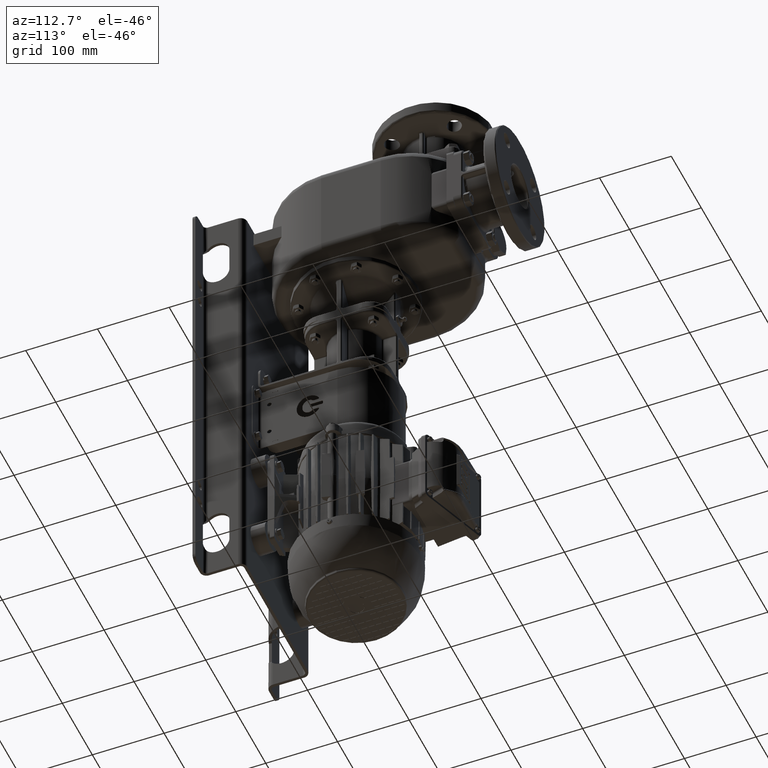
[diagram: clean part render]
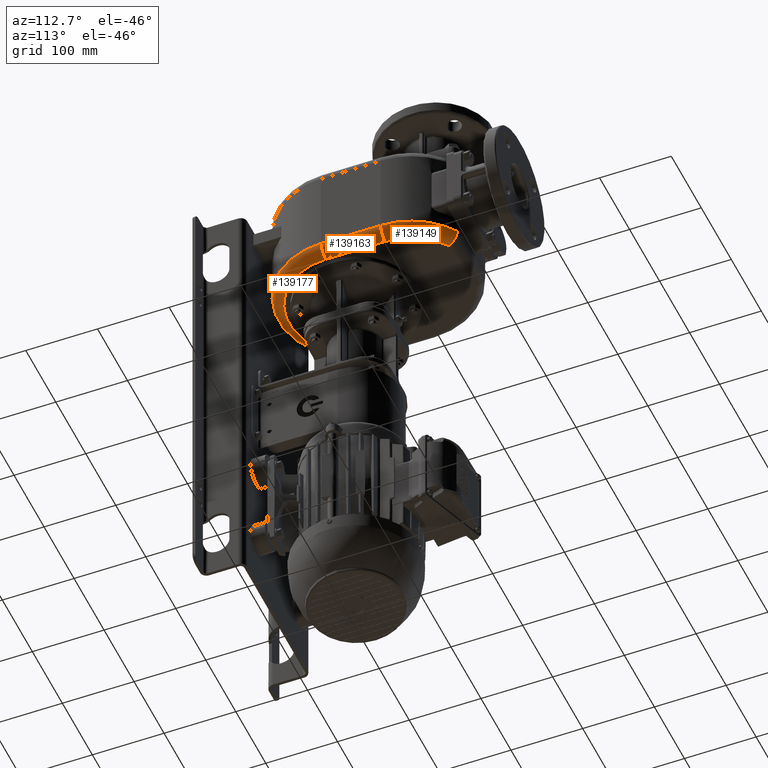
[diagram: same view with one multi-face feature highlighted, each face labeled with its STEP entity id]
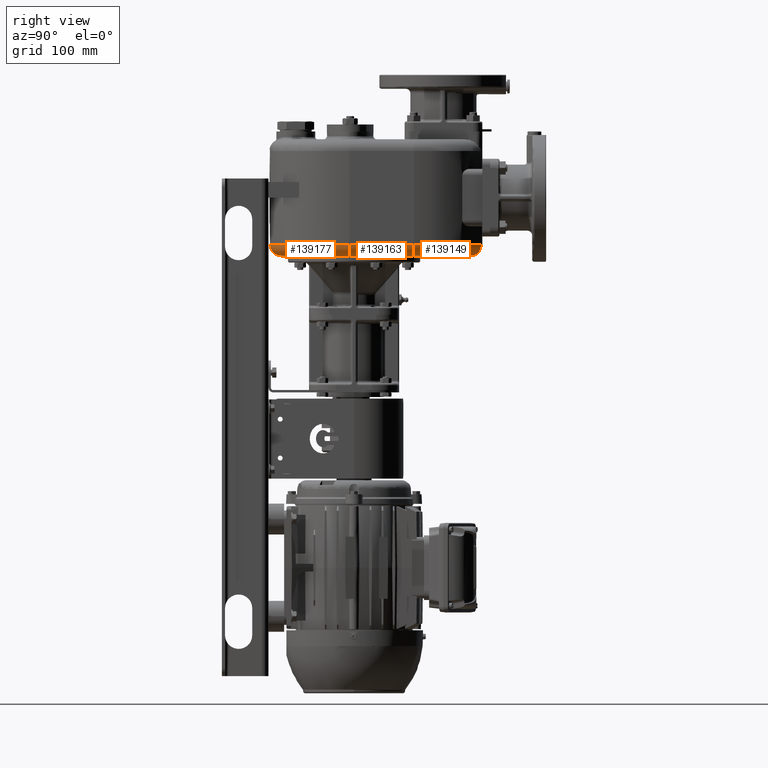
[diagram: same view with one multi-face feature highlighted, each face labeled with its STEP entity id]
A machine part, auxiliary view. The highlighted faces form ONE feature: a constant-radius fillet chain: 3 tangent blend faces with common blend radius 15 mm. The faces share edges in the B-rep.
A second angle (right view) of the same feature is appended — it is thin or edge-on in the first view.
Their STEP definitions:
[1] entity #139163 (Cylinder):
#41271=DIRECTION('',(0.E0,-1.E0,0.E0));
#41272=VECTOR('',#41271,8.285014036194E1);
#41273=CARTESIAN_POINT('',(8.8E1,1.868501403619E2,-8.5E1));
#41274=LINE('',#41273,#41272);
#53323=CARTESIAN_POINT('',(8.8E1,1.868501403619E2,-7.E1));
#53324=DIRECTION('',(0.E0,-1.E0,0.E0));
#53325=DIRECTION('',(0.E0,0.E0,-1.E0));
#53326=AXIS2_PLACEMENT_3D('',#53323,#53324,#53325);
#53328=CARTESIAN_POINT('',(8.8E1,1.04E2,-7.E1));
#53329=DIRECTION('',(0.E0,-1.E0,0.E0));
#53330=DIRECTION('',(0.E0,0.E0,-1.E0));
#53331=AXIS2_PLACEMENT_3D('',#53328,#53329,#53330);
#53543=DIRECTION('',(0.E0,-1.E0,0.E0));
#53544=VECTOR('',#53543,8.285014036194E1);
#53545=CARTESIAN_POINT('',(1.03E2,1.868501403620E2,-7.E1));
#53546=LINE('',#53545,#53544);
#78185=CARTESIAN_POINT('',(8.8E1,1.868501403619E2,-8.5E1));
#78186=VERTEX_POINT('',#78185);
#78188=CARTESIAN_POINT('',(1.03E2,1.868501403619E2,-7.E1));
#78190=VERTEX_POINT('',#78188);
#78191=CARTESIAN_POINT('',(8.8E1,1.04E2,-8.5E1));
#78192=VERTEX_POINT('',#78191);
#78193=CARTESIAN_POINT('',(1.03E2,1.04E2,-7.E1));
#78194=VERTEX_POINT('',#78193);
#139150=CARTESIAN_POINT('',(8.8E1,1.874318907324E2,-7.E1));
#139151=DIRECTION('',(0.E0,-1.E0,0.E0));
#139152=DIRECTION('',(0.E0,0.E0,-1.E0));
#139153=AXIS2_PLACEMENT_3D('',#139150,#139151,#139152);
#139154=CYLINDRICAL_SURFACE('',#139153,1.5E1);
#139155=ORIENTED_EDGE('',*,*,#129445,.T.);
#139157=ORIENTED_EDGE('',*,*,#139156,.T.);
#139159=ORIENTED_EDGE('',*,*,#139158,.F.);
#139160=ORIENTED_EDGE('',*,*,#139143,.F.);
#139161=EDGE_LOOP('',(#139155,#139157,#139159,#139160));
#139162=FACE_OUTER_BOUND('',#139161,.F.);
#139163=ADVANCED_FACE('',(#139162),#139154,.T.);
#53327=CIRCLE('',#53326,1.5E1);
#53332=CIRCLE('',#53331,1.5E1);
#129445=EDGE_CURVE('',#78186,#78192,#41274,.T.);
#139143=EDGE_CURVE('',#78186,#78190,#53327,.T.);
#139156=EDGE_CURVE('',#78192,#78194,#53332,.T.);
#139158=EDGE_CURVE('',#78190,#78194,#53546,.T.);
[2] entity #139177 (Torus):
#41266=CARTESIAN_POINT('',(0.E0,1.04E2,-8.5E1));
#41267=DIRECTION('',(0.E0,0.E0,-1.E0));
#41268=DIRECTION('',(1.E0,0.E0,0.E0));
#41269=AXIS2_PLACEMENT_3D('',#41266,#41267,#41268);
#53328=CARTESIAN_POINT('',(8.8E1,1.04E2,-7.E1));
#53329=DIRECTION('',(0.E0,-1.E0,0.E0));
#53330=DIRECTION('',(0.E0,0.E0,-1.E0));
#53331=AXIS2_PLACEMENT_3D('',#53328,#53329,#53330);
#53333=CARTESIAN_POINT('',(-8.8E1,1.04E2,-7.E1));
#53334=DIRECTION('',(0.E0,1.E0,0.E0));
#53335=DIRECTION('',(0.E0,0.E0,-1.E0));
#53336=AXIS2_PLACEMENT_3D('',#53333,#53334,#53335);
#53511=CARTESIAN_POINT('',(0.E0,1.04E2,-7.E1));
#53512=DIRECTION('',(0.E0,0.E0,-1.E0));
#53513=DIRECTION('',(1.E0,0.E0,0.E0));
#53514=AXIS2_PLACEMENT_3D('',#53511,#53512,#53513);
#78191=CARTESIAN_POINT('',(8.8E1,1.04E2,-8.5E1));
#78192=VERTEX_POINT('',#78191);
#78193=CARTESIAN_POINT('',(1.03E2,1.04E2,-7.E1));
#78194=VERTEX_POINT('',#78193);
#78195=CARTESIAN_POINT('',(-8.8E1,1.04E2,-8.5E1));
#78196=VERTEX_POINT('',#78195);
#78197=CARTESIAN_POINT('',(-1.03E2,1.04E2,-7.E1));
#78198=VERTEX_POINT('',#78197);
#139164=CARTESIAN_POINT('',(0.E0,1.04E2,-7.E1));
#139165=DIRECTION('',(0.E0,0.E0,-1.E0));
#139166=DIRECTION('',(9.999840497411E-1,5.648031819933E-3,0.E0));
#139167=AXIS2_PLACEMENT_3D('',#139164,#139165,#139166);
#139168=TOROIDAL_SURFACE('',#139167,8.8E1,1.5E1);
#139169=ORIENTED_EDGE('',*,*,#129443,.T.);
#139171=ORIENTED_EDGE('',*,*,#139170,.T.);
#139173=ORIENTED_EDGE('',*,*,#139172,.F.);
#139174=ORIENTED_EDGE('',*,*,#139156,.F.);
#139175=EDGE_LOOP('',(#139169,#139171,#139173,#139174));
#139176=FACE_OUTER_BOUND('',#139175,.F.);
#139177=ADVANCED_FACE('',(#139176),#139168,.T.);
#41270=CIRCLE('',#41269,8.8E1);
#53332=CIRCLE('',#53331,1.5E1);
#53337=CIRCLE('',#53336,1.5E1);
#53515=CIRCLE('',#53514,1.03E2);
#129443=EDGE_CURVE('',#78192,#78196,#41270,.T.);
#139156=EDGE_CURVE('',#78192,#78194,#53332,.T.);
#139170=EDGE_CURVE('',#78196,#78198,#53337,.T.);
#139172=EDGE_CURVE('',#78194,#78198,#53515,.T.);
[3] entity #139149 (Torus):
#41275=CARTESIAN_POINT('',(0.E0,1.868501403619E2,-8.5E1));
#41276=DIRECTION('',(0.E0,0.E0,-1.E0));
#41277=DIRECTION('',(5.558997450868E-1,8.312493449095E-1,0.E0));
#41278=AXIS2_PLACEMENT_3D('',#41275,#41276,#41277);
#52937=CARTESIAN_POINT('',(0.E0,1.868501403619E2,-7.E1));
#52938=DIRECTION('',(0.E0,0.E0,-1.E0));
#52939=DIRECTION('',(5.368416870232E-1,8.436829991615E-1,0.E0));
#52940=AXIS2_PLACEMENT_3D('',#52937,#52938,#52939);
#53233=CARTESIAN_POINT('',(4.891925650350E1,2.600000000036E2,-8.5E1));
#53234=CARTESIAN_POINT('',(4.900362709990E1,2.601760864675E2,
-8.499989893778E1));
#53235=CARTESIAN_POINT('',(4.917394767408E1,2.605272387066E2,
-8.499256642681E1));
#53236=CARTESIAN_POINT('',(4.942501275344E1,2.610541368896E2,
-8.495898531075E1));
#53237=CARTESIAN_POINT('',(4.967564401677E1,2.615786249304E2,
-8.490329133230E1));
#53238=CARTESIAN_POINT('',(4.992432926993E1,2.621006151425E2,
-8.482552250719E1));
#53239=CARTESIAN_POINT('',(5.017100613577E1,2.626193812885E2,
-8.472584483861E1));
#53240=CARTESIAN_POINT('',(5.041528768068E1,2.631343469256E2,
-8.460439983376E1));
#53241=CARTESIAN_POINT('',(5.065664605911E1,2.636450312466E2,
-8.446134959214E1));
#53242=CARTESIAN_POINT('',(5.089470494998E1,2.641507295585E2,
-8.429689778528E1));
#53243=CARTESIAN_POINT('',(5.112929232233E1,2.646506475877E2,
-8.411126618860E1));
#53244=CARTESIAN_POINT('',(5.136016881857E1,2.651439808101E2,
-8.390471768055E1));
#53245=CARTESIAN_POINT('',(5.158702644638E1,2.656298242703E2,
-8.367760625478E1));
#53246=CARTESIAN_POINT('',(5.180965248556E1,2.661072589125E2,
-8.343032759172E1));
#53247=CARTESIAN_POINT('',(5.202749924208E1,2.665756187672E2,
-8.316332163530E1));
#53248=CARTESIAN_POINT('',(5.224015795494E1,2.670343684287E2,
-8.287697624084E1));
#53249=CARTESIAN_POINT('',(5.244749483292E1,2.674828349504E2,
-8.257167909836E1));
#53250=CARTESIAN_POINT('',(5.264928039515E1,2.679203390271E2,
-8.224787837931E1));
#53251=CARTESIAN_POINT('',(5.284524913483E1,2.683461340249E2,
-8.190611902386E1));
#53252=CARTESIAN_POINT('',(5.303520056162E1,2.687594831671E2,
-8.154697313948E1));
#53253=CARTESIAN_POINT('',(5.321872331177E1,2.691598395164E2,
-8.117103306940E1));
#53254=CARTESIAN_POINT('',(5.339552547361E1,2.695466583258E2,
-8.077888386224E1));
#53255=CARTESIAN_POINT('',(5.356549383461E1,2.699193087596E2,
-8.037113228813E1));
#53256=CARTESIAN_POINT('',(5.372846756766E1,2.702772255575E2,
-7.994840269643E1));
#53257=CARTESIAN_POINT('',(5.388427868466E1,2.706198863845E2,
-7.951133056977E1));
#53258=CARTESIAN_POINT('',(5.403280636087E1,2.709467644747E2,
-7.906057330034E1));
#53259=CARTESIAN_POINT('',(5.417370507941E1,2.712575298824E2,
-7.859677963912E1));
#53260=CARTESIAN_POINT('',(5.430676734827E1,2.715518102032E2,
-7.812058558796E1));
#53261=CARTESIAN_POINT('',(5.443196772636E1,2.718291489689E2,
-7.763261961306E1));
#53262=CARTESIAN_POINT('',(5.454919161733E1,2.720891016263E2,
-7.713361713003E1));
#53263=CARTESIAN_POINT('',(5.465830584136E1,2.723312465906E2,
-7.662437635611E1));
#53264=CARTESIAN_POINT('',(5.475920094833E1,2.725551973963E2,
-7.610570592422E1));
#53265=CARTESIAN_POINT('',(5.485162360848E1,2.727607172059E2,
-7.557840395958E1));
#53266=CARTESIAN_POINT('',(5.493546131548E1,2.729475324872E2,
-7.504324998505E1));
#53267=CARTESIAN_POINT('',(5.501070894459E1,2.731153340330E2,
-7.450104074103E1));
#53268=CARTESIAN_POINT('',(5.507731636493E1,2.732638905741E2,
-7.395254674393E1));
#53269=CARTESIAN_POINT('',(5.513521649512E1,2.733930149327E2,
-7.339853334847E1));
#53270=CARTESIAN_POINT('',(5.518434139205E1,2.735025499406E2,
-7.283977839458E1));
#53271=CARTESIAN_POINT('',(5.522452440226E1,2.735924484569E2,
-7.227696300718E1));
#53272=CARTESIAN_POINT('',(5.525577933914E1,2.736625575012E2,
-7.171082445520E1));
#53273=CARTESIAN_POINT('',(5.527815325621E1,2.737127052348E2,
-7.114211488003E1));
#53274=CARTESIAN_POINT('',(5.529166165956E1,2.737428377248E2,
-7.057160382810E1));
#53275=CARTESIAN_POINT('',(5.529466802593E1,2.737494444526E2,
-7.019055702407E1));
#53276=CARTESIAN_POINT('',(5.529470069479E1,2.737494526127E2,
-6.999999998605E1));
#53323=CARTESIAN_POINT('',(8.8E1,1.868501403619E2,-7.E1));
#53324=DIRECTION('',(0.E0,-1.E0,0.E0));
#53325=DIRECTION('',(0.E0,0.E0,-1.E0));
#53326=AXIS2_PLACEMENT_3D('',#53323,#53324,#53325);
#78182=CARTESIAN_POINT('',(4.891925650350E1,2.600000000036E2,-8.5E1));
#78184=VERTEX_POINT('',#78182);
#78185=CARTESIAN_POINT('',(8.8E1,1.868501403619E2,-8.5E1));
#78186=VERTEX_POINT('',#78185);
#78187=CARTESIAN_POINT('',(5.529469376339E1,2.737494892756E2,-7.E1));
#78188=CARTESIAN_POINT('',(1.03E2,1.868501403619E2,-7.E1));
#78189=VERTEX_POINT('',#78187);
#78190=VERTEX_POINT('',#78188);
#139137=CARTESIAN_POINT('',(0.E0,1.868501403619E2,-7.E1));
#139138=DIRECTION('',(0.E0,0.E0,-1.E0));
#139139=DIRECTION('',(-8.773104036497E-1,-4.799233851857E-1,0.E0));
#139140=AXIS2_PLACEMENT_3D('',#139137,#139138,#139139);
#139141=TOROIDAL_SURFACE('',#139140,8.8E1,1.5E1);
#139142=ORIENTED_EDGE('',*,*,#129447,.T.);
#139144=ORIENTED_EDGE('',*,*,#139143,.T.);
#139145=ORIENTED_EDGE('',*,*,#138813,.F.);
#139146=ORIENTED_EDGE('',*,*,#139130,.F.);
#139147=EDGE_LOOP('',(#139142,#139144,#139145,#139146));
#139148=FACE_OUTER_BOUND('',#139147,.F.);
#139149=ADVANCED_FACE('',(#139148),#139141,.T.);
#41279=CIRCLE('',#41278,8.8E1);
#52941=CIRCLE('',#52940,1.03E2);
#53277=B_SPLINE_CURVE_WITH_KNOTS('',3,(#53233,#53234,#53235,#53236,#53237,
#53238,#53239,#53240,#53241,#53242,#53243,#53244,#53245,#53246,#53247,#53248,
#53249,#53250,#53251,#53252,#53253,#53254,#53255,#53256,#53257,#53258,#53259,
#53260,#53261,#53262,#53263,#53264,#53265,#53266,#53267,#53268,#53269,#53270,
#53271,#53272,#53273,#53274,#53275,#53276),.UNSPECIFIED.,.F.,.F.,(4,1,1,1,1,1,1,
1,1,1,1,1,1,1,1,1,1,1,1,1,1,1,1,1,1,1,1,1,1,1,1,1,1,1,1,1,1,1,1,1,1,4),(0.E0,
2.439024390244E-2,4.878048780488E-2,7.317073170732E-2,9.756097560976E-2,
1.219512195122E-1,1.463414634146E-1,1.707317073171E-1,1.951219512195E-1,
2.195121951220E-1,2.439024390244E-1,2.682926829268E-1,2.926829268293E-1,
3.170731707317E-1,3.414634146341E-1,3.658536585366E-1,3.902439024390E-1,
4.146341463415E-1,4.390243902439E-1,4.634146341463E-1,4.878048780488E-1,
5.121951219512E-1,5.365853658537E-1,5.609756097561E-1,5.853658536585E-1,
6.097560975610E-1,6.341463414634E-1,6.585365853659E-1,6.829268292683E-1,
7.073170731707E-1,7.317073170732E-1,7.560975609756E-1,7.804878048780E-1,
8.048780487805E-1,8.292682926829E-1,8.536585365854E-1,8.780487804878E-1,
9.024390243902E-1,9.268292682927E-1,9.512195121951E-1,9.756097560976E-1,1.E0),
.UNSPECIFIED.);
#53327=CIRCLE('',#53326,1.5E1);
#129447=EDGE_CURVE('',#78184,#78186,#41279,.T.);
#138813=EDGE_CURVE('',#78189,#78190,#52941,.T.);
#139130=EDGE_CURVE('',#78184,#78189,#53277,.T.);
#139143=EDGE_CURVE('',#78186,#78190,#53327,.T.);